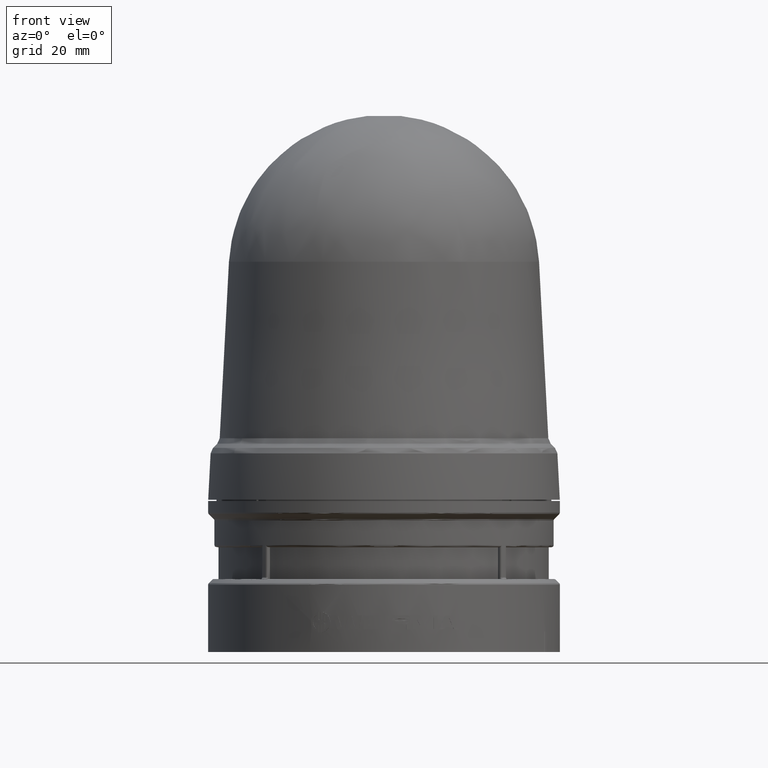
[diagram: clean part render]
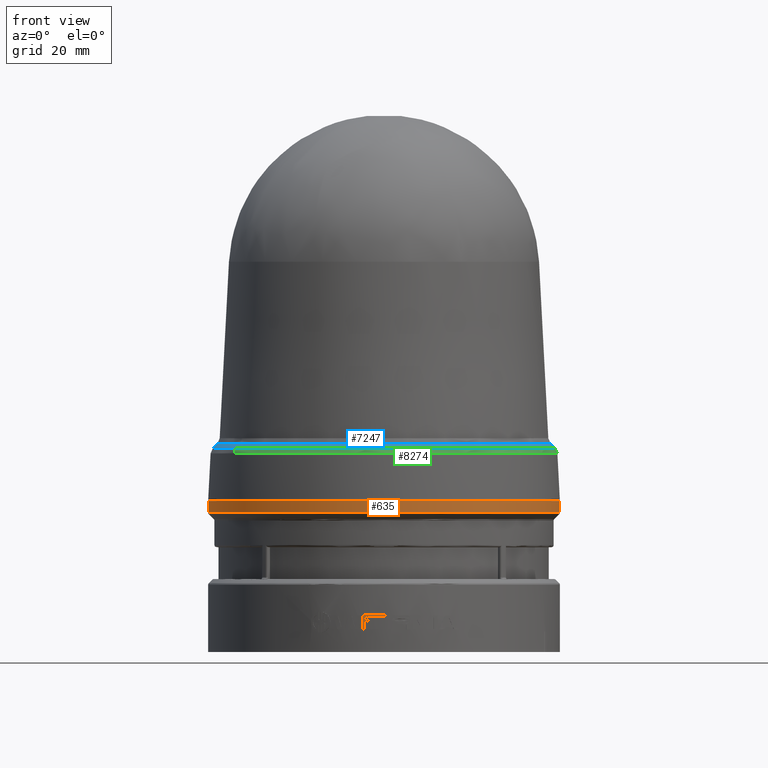
[diagram: same view with three faces highlighted in distinct colors, each labeled with its STEP entity id]
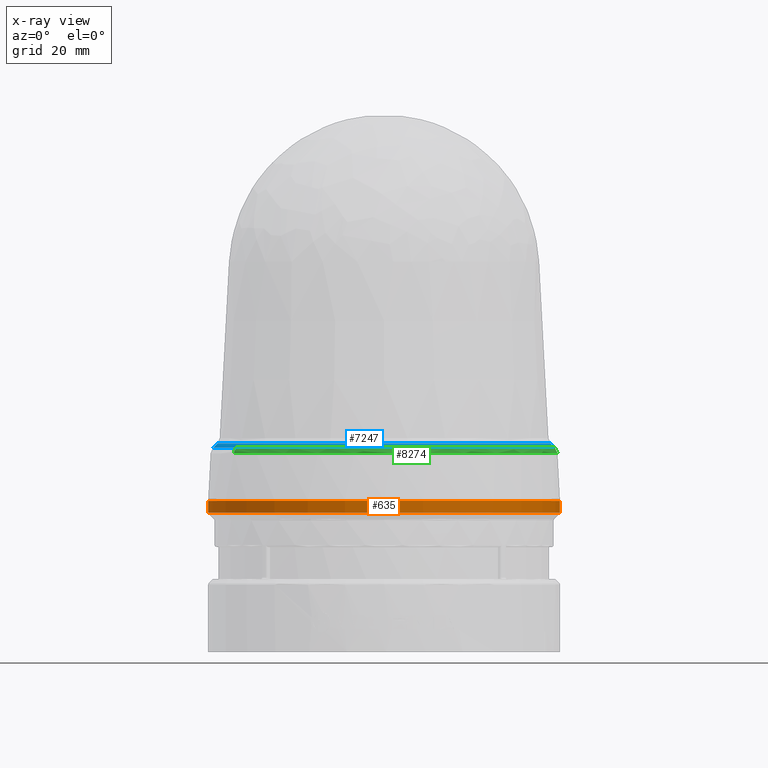
[diagram: x-ray of the same camera — body ghosted, the three highlighted faces saturated]
A machine part, front view with three faces highlighted in distinct colors.
The next image is the same camera in x-ray (body ghosted, the three faces saturated) — at least one of them is partly hidden behind the body in this view.
Their STEP definitions:

[orange] entity #635 — the highlighted cylindrical surface (partial cylindrical patch) has radius 42.5 mm, axis along (0, 0, -1).
#425 = CARTESIAN_POINT ( 'NONE',  ( 1.673228346456693050, 2.049113738730807505E-16, 0.8562992125984253411 ) ) ;
#466 = AXIS2_PLACEMENT_3D ( 'NONE', #2549, #5138, #9915 ) ;
#635 = ADVANCED_FACE ( 'NONE', ( #7728 ), #1624, .T. ) ;
#1624 = CYLINDRICAL_SURFACE ( 'NONE', #10052, 1.673228346456693050 ) ;
#1819 = ORIENTED_EDGE ( 'NONE', *, *, #2266, .F. ) ;
#2266 = EDGE_CURVE ( 'NONE', #8410, #3203, #14656, .T. ) ;
#2295 = VERTEX_POINT ( 'NONE', #7853 ) ;
#2549 = CARTESIAN_POINT ( 'NONE',  ( 0.0000000000000000000, 0.0000000000000000000, 1.327051448078212736 ) ) ;
#2793 = DIRECTION ( 'NONE',  ( 0.0000000000000000000, 0.0000000000000000000, -1.000000000000000000 ) ) ;
#3091 = DIRECTION ( 'NONE',  ( 0.0000000000000000000, 0.0000000000000000000, -1.000000000000000000 ) ) ;
#3203 = VERTEX_POINT ( 'NONE', #5157 ) ;
#3368 = ORIENTED_EDGE ( 'NONE', *, *, #14962, .F. ) ;
#3939 = DIRECTION ( 'NONE',  ( 0.0000000000000000000, 0.0000000000000000000, -1.000000000000000000 ) ) ;
#4013 = CARTESIAN_POINT ( 'NONE',  ( -1.673228346456693050, 0.0000000000000000000, 1.327051448078212736 ) ) ;
#4609 = VECTOR ( 'NONE', #3939, 39.37007874015748143 ) ;
#4967 = CIRCLE ( 'NONE', #466, 1.673228346456693050 ) ;
#5138 = DIRECTION ( 'NONE',  ( -0.0000000000000000000, -0.0000000000000000000, 1.000000000000000000 ) ) ;
#5157 = CARTESIAN_POINT ( 'NONE',  ( 1.673228346456693050, 2.049113738730807505E-16, 1.327051448078212736 ) ) ;
#5372 = CARTESIAN_POINT ( 'NONE',  ( 0.0000000000000000000, 0.0000000000000000000, 0.8562992125984253411 ) ) ;
#5984 = VECTOR ( 'NONE', #2793, 39.37007874015748143 ) ;
#6976 = AXIS2_PLACEMENT_3D ( 'NONE', #9584, #15435, #9510 ) ;
#7728 = FACE_OUTER_BOUND ( 'NONE', #11180, .T. ) ;
#7853 = CARTESIAN_POINT ( 'NONE',  ( -1.673228346456693050, 0.0000000000000000000, 1.437007874015747921 ) ) ;
#8275 = ORIENTED_EDGE ( 'NONE', *, *, #12646, .T. ) ;
#8410 = VERTEX_POINT ( 'NONE', #10618 ) ;
#9510 = DIRECTION ( 'NONE',  ( -1.000000000000000000, 0.0000000000000000000, 0.0000000000000000000 ) ) ;
#9584 = CARTESIAN_POINT ( 'NONE',  ( 0.0000000000000000000, 0.0000000000000000000, 1.437007874015747921 ) ) ;
#9601 = ORIENTED_EDGE ( 'NONE', *, *, #13807, .T. ) ;
#9915 = DIRECTION ( 'NONE',  ( -1.000000000000000000, 0.0000000000000000000, 0.0000000000000000000 ) ) ;
#10052 = AXIS2_PLACEMENT_3D ( 'NONE', #5372, #3091, #12343 ) ;
#10618 = CARTESIAN_POINT ( 'NONE',  ( 1.673228346456693050, 2.049113738730807505E-16, 1.437007874015747921 ) ) ;
#11180 = EDGE_LOOP ( 'NONE', ( #1819, #3368, #9601, #8275 ) ) ;
#11714 = CIRCLE ( 'NONE', #6976, 1.673228346456693050 ) ;
#12092 = VERTEX_POINT ( 'NONE', #4013 ) ;
#12282 = LINE ( 'NONE', #13672, #5984 ) ;
#12343 = DIRECTION ( 'NONE',  ( -1.000000000000000000, 0.0000000000000000000, 0.0000000000000000000 ) ) ;
#12646 = EDGE_CURVE ( 'NONE', #12092, #3203, #4967, .T. ) ;
#13672 = CARTESIAN_POINT ( 'NONE',  ( -1.673228346456693050, 0.0000000000000000000, 0.8562992125984253411 ) ) ;
#13807 = EDGE_CURVE ( 'NONE', #2295, #12092, #12282, .T. ) ;
#14656 = LINE ( 'NONE', #425, #4609 ) ;
#14962 = EDGE_CURVE ( 'NONE', #2295, #8410, #11714, .T. ) ;
#15435 = DIRECTION ( 'NONE',  ( -0.0000000000000000000, -0.0000000000000000000, 1.000000000000000000 ) ) ;

[blue] entity #7247 — the highlighted conical surface has half-angle 45 deg.
#40 = CARTESIAN_POINT ( 'NONE',  ( 0.0000000000000000000, 0.0000000000000000000, 1.942632508836785732 ) ) ;
#52 = VECTOR ( 'NONE', #7656, 39.37007874015748143 ) ;
#473 = VERTEX_POINT ( 'NONE', #12119 ) ;
#555 = CARTESIAN_POINT ( 'NONE',  ( -1.407777115246838129, -0.8158463767105484932, 1.942632508836785732 ) ) ;
#621 = EDGE_CURVE ( 'NONE', #4020, #473, #10229, .T. ) ;
#675 = CARTESIAN_POINT ( 'NONE',  ( -1.627096099375951122, 0.0000000000000000000, 1.942632508836785732 ) ) ;
#801 = CARTESIAN_POINT ( 'NONE',  ( 0.0000000000000000000, 0.0000000000000000000, 1.983102281106849718 ) ) ;
#825 = DIRECTION ( 'NONE',  ( 0.7071067811865499042, 8.659560562354962440E-17, -0.7071067811865451302 ) ) ;
#1376 = DIRECTION ( 'NONE',  ( -0.0000000000000000000, 0.0000000000000000000, -1.000000000000000000 ) ) ;
#1552 = EDGE_CURVE ( 'NONE', #12483, #9920, #4213, .T. ) ;
#1824 = DIRECTION ( 'NONE',  ( 0.0000000000000000000, 0.0000000000000000000, -1.000000000000000000 ) ) ;
#1860 = CIRCLE ( 'NONE', #4334, 1.586626327105886691 ) ;
#2862 = CONICAL_SURFACE ( 'NONE', #7598, 1.627096099375951122, 0.7853981633974517207 ) ;
#4020 = VERTEX_POINT ( 'NONE', #7145 ) ;
#4147 = ORIENTED_EDGE ( 'NONE', *, *, #8302, .F. ) ;
#4213 = CIRCLE ( 'NONE', #14716, 1.627096099375950899 ) ;
#4334 = AXIS2_PLACEMENT_3D ( 'NONE', #14890, #1824, #13880 ) ;
#4557 = VERTEX_POINT ( 'NONE', #10159 ) ;
#5480 = CARTESIAN_POINT ( 'NONE',  ( 0.0000000000000000000, 0.0000000000000000000, 1.942632508836785732 ) ) ;
#6948 = LINE ( 'NONE', #11710, #8369 ) ;
#7145 = CARTESIAN_POINT ( 'NONE',  ( -1.586626327105886913, 0.0000000000000000000, 1.983102281106849718 ) ) ;
#7225 = AXIS2_PLACEMENT_3D ( 'NONE', #5480, #8071, #15174 ) ;
#7247 = ADVANCED_FACE ( 'NONE', ( #10776 ), #2862, .T. ) ;
#7291 = DIRECTION ( 'NONE',  ( -0.0000000000000000000, -0.0000000000000000000, 1.000000000000000000 ) ) ;
#7559 = EDGE_CURVE ( 'NONE', #13588, #4557, #1860, .T. ) ;
#7598 = AXIS2_PLACEMENT_3D ( 'NONE', #40, #1376, #14431 ) ;
#7656 = DIRECTION ( 'NONE',  ( -0.7071067811865499042, 0.0000000000000000000, -0.7071067811865451302 ) ) ;
#7693 = ORIENTED_EDGE ( 'NONE', *, *, #12191, .T. ) ;
#7995 = CARTESIAN_POINT ( 'NONE',  ( 1.586626327105886913, 1.967837441469523977E-16, 1.983102281106849718 ) ) ;
#8071 = DIRECTION ( 'NONE',  ( -0.0000000000000000000, -0.0000000000000000000, 1.000000000000000000 ) ) ;
#8107 = CARTESIAN_POINT ( 'NONE',  ( 1.627096099375951122, 1.992618030005902044E-16, 1.942632508836785732 ) ) ;
#8242 = DIRECTION ( 'NONE',  ( 0.5014125330541039371, -0.8652083400524217538, 0.0000000000000000000 ) ) ;
#8302 = EDGE_CURVE ( 'NONE', #13588, #9920, #6948, .T. ) ;
#8369 = VECTOR ( 'NONE', #825, 39.37007874015748143 ) ;
#8540 = CARTESIAN_POINT ( 'NONE',  ( 0.0000000000000000000, 0.0000000000000000000, 1.942632508836785732 ) ) ;
#9920 = VERTEX_POINT ( 'NONE', #8107 ) ;
#10159 = CARTESIAN_POINT ( 'NONE',  ( -1.372762330758755311, -0.7955543256844920252, 1.983102281106849718 ) ) ;
#10201 = CIRCLE ( 'NONE', #12960, 1.586626327105886691 ) ;
#10229 = LINE ( 'NONE', #675, #52 ) ;
#10592 = ORIENTED_EDGE ( 'NONE', *, *, #7559, .T. ) ;
#10776 = FACE_OUTER_BOUND ( 'NONE', #12867, .T. ) ;
#11610 = DIRECTION ( 'NONE',  ( -0.8652083400524216428, -0.5014125330541040482, 0.0000000000000000000 ) ) ;
#11710 = CARTESIAN_POINT ( 'NONE',  ( 1.627096099375951122, 1.992618030005902044E-16, 1.942632508836785732 ) ) ;
#11900 = ORIENTED_EDGE ( 'NONE', *, *, #621, .T. ) ;
#11963 = CIRCLE ( 'NONE', #7225, 1.627096099375950899 ) ;
#12119 = CARTESIAN_POINT ( 'NONE',  ( -1.627096099375951122, 0.0000000000000000000, 1.942632508836785732 ) ) ;
#12191 = EDGE_CURVE ( 'NONE', #4557, #4020, #10201, .T. ) ;
#12483 = VERTEX_POINT ( 'NONE', #555 ) ;
#12563 = EDGE_CURVE ( 'NONE', #473, #12483, #11963, .T. ) ;
#12867 = EDGE_LOOP ( 'NONE', ( #4147, #10592, #7693, #11900, #15399, #14593 ) ) ;
#12960 = AXIS2_PLACEMENT_3D ( 'NONE', #801, #15346, #11610 ) ;
#13588 = VERTEX_POINT ( 'NONE', #7995 ) ;
#13880 = DIRECTION ( 'NONE',  ( -0.8652083400524216428, -0.5014125330541040482, 0.0000000000000000000 ) ) ;
#14431 = DIRECTION ( 'NONE',  ( -1.000000000000000000, 0.0000000000000000000, 0.0000000000000000000 ) ) ;
#14593 = ORIENTED_EDGE ( 'NONE', *, *, #1552, .T. ) ;
#14716 = AXIS2_PLACEMENT_3D ( 'NONE', #8540, #7291, #8242 ) ;
#14890 = CARTESIAN_POINT ( 'NONE',  ( 0.0000000000000000000, 0.0000000000000000000, 1.983102281106849718 ) ) ;
#15174 = DIRECTION ( 'NONE',  ( 0.5014125330541008285, -0.8652083400524235302, 0.0000000000000000000 ) ) ;
#15346 = DIRECTION ( 'NONE',  ( 0.0000000000000000000, 0.0000000000000000000, -1.000000000000000000 ) ) ;
#15399 = ORIENTED_EDGE ( 'NONE', *, *, #12563, .T. ) ;

[green] entity #8274 — the highlighted face is a freeform B-spline surface patch.
#268 = DIRECTION ( 'NONE',  ( -0.8652083400524217538, -0.5014125330541039371, 0.0000000000000000000 ) ) ;
#555 = CARTESIAN_POINT ( 'NONE',  ( -1.407777115246838129, -0.8158463767105484932, 1.942632508836785732 ) ) ;
#836 = CIRCLE ( 'NONE', #10590, 1.627096099375950899 ) ;
#908 = CARTESIAN_POINT ( 'NONE',  ( 3.065469848963093824, -2.016813588349010811, 1.928714138742648077 ) ) ;
#1552 = EDGE_CURVE ( 'NONE', #12483, #9920, #4213, .T. ) ;
#1697 = CARTESIAN_POINT ( 'NONE',  ( -1.427637581207633843, -0.8273560745301903330, 1.891075750967208702 ) ) ;
#1829 = CARTESIAN_POINT ( 'NONE',  ( 0.2258310386986474017, -3.662464032179881812, 1.928714138742648077 ) ) ;
#2201 = CIRCLE ( 'NONE', #6208, 1.650050646900994122 ) ;
#2365 = ORIENTED_EDGE ( 'NONE', *, *, #4367, .F. ) ;
#2529 = DIRECTION ( 'NONE',  ( -0.0000000000000000000, -0.0000000000000000000, 1.000000000000000000 ) ) ;
#2832 = CIRCLE ( 'NONE', #13127, 1.650050646900994122 ) ;
#3104 = CARTESIAN_POINT ( 'NONE',  ( 1.407777115246837907, 0.8158463767105484932, 1.942632508836785732 ) ) ;
#3162 = CARTESIAN_POINT ( 'NONE',  ( 3.039469868667934893, -1.999707853783127209, 1.942632508836787286 ) ) ;
#3326 = FACE_OUTER_BOUND ( 'NONE', #4446, .T. ) ;
#3519 = CIRCLE ( 'NONE', #7775, 0.07874015748031504280 ) ;
#3758 = AXIS2_PLACEMENT_3D ( 'NONE', #8530, #6181, #3824 ) ;
#3824 = DIRECTION ( 'NONE',  ( -0.8652083400524219758, -0.5014125330541034931, 0.0000000000000000000 ) ) ;
#4213 = CIRCLE ( 'NONE', #14716, 1.627096099375950899 ) ;
#4367 = EDGE_CURVE ( 'NONE', #9920, #13962, #836, .T. ) ;
#4446 = EDGE_LOOP ( 'NONE', ( #13927, #5036, #2365, #8089, #5852, #15034 ) ) ;
#4583 = CARTESIAN_POINT ( 'NONE',  ( -1.419819405132223489, -0.8228252219154356117, 1.928714138742647854 ) ) ;
#4645 = VERTEX_POINT ( 'NONE', #1697 ) ;
#5036 = ORIENTED_EDGE ( 'NONE', *, *, #9605, .T. ) ;
#5085 = DIRECTION ( 'NONE',  ( 0.5014125330541041592, -0.8652083400524218648, 0.0000000000000000000 ) ) ;
#5118 = CARTESIAN_POINT ( 'NONE',  ( 0.0000000000000000000, 0.0000000000000000000, 1.891075750967208702 ) ) ;
#5503 = CIRCLE ( 'NONE', #3758, 0.07874015748031504280 ) ;
#5520 = CARTESIAN_POINT ( 'NONE',  ( -1.427637581207633843, -0.8273560745301905550, 1.891075750967208702 ) ) ;
#5684 = CARTESIAN_POINT ( 'NONE',  ( -1.407777115246838129, -0.8158463767105487152, 1.942632508836787064 ) ) ;
#5852 = ORIENTED_EDGE ( 'NONE', *, *, #11514, .F. ) ;
#5970 = CARTESIAN_POINT ( 'NONE',  ( 1.650050646900993900, 2.034921490944564712E-16, 1.891075750967208702 ) ) ;
#6181 = DIRECTION ( 'NONE',  ( -0.5014125330541039371, 0.8652083400524217538, 0.0000000000000000000 ) ) ;
#6208 = AXIS2_PLACEMENT_3D ( 'NONE', #5118, #2529, #268 ) ;
#6783 = CARTESIAN_POINT ( 'NONE',  ( -1.426746280525369004, -0.8268395407520020557, 1.910732323102366070 ) ) ;
#7141 = CARTESIAN_POINT ( 'NONE',  ( 1.427637581207633843, 0.8273560745301905550, 1.891075750967208702 ) ) ;
#7291 = DIRECTION ( 'NONE',  ( -0.0000000000000000000, -0.0000000000000000000, 1.000000000000000000 ) ) ;
#7599 = EDGE_CURVE ( 'NONE', #4645, #13338, #2832, .T. ) ;
#7775 = AXIS2_PLACEMENT_3D ( 'NONE', #12286, #5085, #11189 ) ;
#7870 = CARTESIAN_POINT ( 'NONE',  ( 1.427637581207633843, 0.8273560745301904440, 1.891075750967208702 ) ) ;
#8089 = ORIENTED_EDGE ( 'NONE', *, *, #1552, .F. ) ;
#8107 = CARTESIAN_POINT ( 'NONE',  ( 1.627096099375951122, 1.992618030005902044E-16, 1.942632508836785732 ) ) ;
#8117 = CARTESIAN_POINT ( 'NONE',  ( 0.2239156381742589685, -3.631400607204224418, 1.942632508836787286 ) ) ;
#8242 = DIRECTION ( 'NONE',  ( 0.5014125330541039371, -0.8652083400524217538, 0.0000000000000000000 ) ) ;
#8274 = ADVANCED_FACE ( 'NONE', ( #3326 ), #14841, .T. ) ;
#8378 = CARTESIAN_POINT ( 'NONE',  ( 0.0000000000000000000, 0.0000000000000000000, 1.942632508836785732 ) ) ;
#8530 = CARTESIAN_POINT ( 'NONE',  ( -1.359604305452332351, -0.7879288804668884705, 1.886954809530760002 ) ) ;
#8540 = CARTESIAN_POINT ( 'NONE',  ( 0.0000000000000000000, 0.0000000000000000000, 1.942632508836785732 ) ) ;
#9000 = DIRECTION ( 'NONE',  ( -0.8652083400524217538, -0.5014125330541039371, 0.0000000000000000000 ) ) ;
#9123 = CARTESIAN_POINT ( 'NONE',  ( 1.426746280525369004, 0.8268395407520019447, 1.910732323102366070 ) ) ;
#9200 = CARTESIAN_POINT ( 'NONE',  ( 3.080425362029372227, -2.026653020298735175, 1.910732323102366070 ) ) ;
#9285 = CARTESIAN_POINT ( 'NONE',  ( 0.2269328009786351352, -3.680332101802739064, 1.910732323102366070 ) ) ;
#9364 = CARTESIAN_POINT ( 'NONE',  ( 1.407777115246838129, 0.8158463767105484932, 1.942632508836787064 ) ) ;
#9493 = VERTEX_POINT ( 'NONE', #7141 ) ;
#9605 = EDGE_CURVE ( 'NONE', #9493, #13962, #3519, .T. ) ;
#9920 = VERTEX_POINT ( 'NONE', #8107 ) ;
#9943 = CARTESIAN_POINT ( 'NONE',  ( 0.0000000000000000000, 0.0000000000000000000, 1.891075750967208702 ) ) ;
#10590 = AXIS2_PLACEMENT_3D ( 'NONE', #8378, #13144, #14308 ) ;
#11189 = DIRECTION ( 'NONE',  ( 0.8652083400524219758, 0.5014125330541034931, 0.0000000000000000000 ) ) ;
#11514 = EDGE_CURVE ( 'NONE', #4645, #12483, #5503, .T. ) ;
#11633 = CARTESIAN_POINT ( 'NONE',  ( 1.419819405132223489, 0.8228252219154353897, 1.928714138742647854 ) ) ;
#11922 = EDGE_CURVE ( 'NONE', #13338, #9493, #2201, .T. ) ;
#12286 = CARTESIAN_POINT ( 'NONE',  ( 1.359604305452332351, 0.7879288804668885815, 1.886954809530760002 ) ) ;
#12365 = DIRECTION ( 'NONE',  ( -0.0000000000000000000, -0.0000000000000000000, 1.000000000000000000 ) ) ;
#12483 = VERTEX_POINT ( 'NONE', #555 ) ;
#13127 = AXIS2_PLACEMENT_3D ( 'NONE', #9943, #12365, #9000 ) ;
#13144 = DIRECTION ( 'NONE',  ( -0.0000000000000000000, -0.0000000000000000000, 1.000000000000000000 ) ) ;
#13338 = VERTEX_POINT ( 'NONE', #5970 ) ;
#13927 = ORIENTED_EDGE ( 'NONE', *, *, #11922, .T. ) ;
#13962 = VERTEX_POINT ( 'NONE', #3104 ) ;
#14129 = CARTESIAN_POINT ( 'NONE',  ( 0.2270745678527469613, -3.682631236945457243, 1.891075750967208702 ) ) ;
#14308 = DIRECTION ( 'NONE',  ( 0.5014125330541039371, -0.8652083400524217538, 0.0000000000000000000 ) ) ;
#14716 = AXIS2_PLACEMENT_3D ( 'NONE', #8540, #7291, #8242 ) ;
#14841 =( BOUNDED_SURFACE ( )  B_SPLINE_SURFACE ( 3, 3, ( 
 ( #7870, #15292, #14129, #5520 ),
 ( #9123, #9200, #9285, #6783 ),
 ( #11633, #908, #1829, #4583 ),
 ( #9364, #3162, #8117, #5684 ) ),
 .UNSPECIFIED., .F., .F., .T. ) 
 B_SPLINE_SURFACE_WITH_KNOTS ( ( 4, 4 ),
 ( 4, 4 ),
 ( 0.0000000000000000000, 1.000000000000000000 ),
 ( 0.0000000000000000000, 1.000000000000000000 ),
 .UNSPECIFIED. ) 
 GEOMETRIC_REPRESENTATION_ITEM ( )  RATIONAL_B_SPLINE_SURFACE ( (
 ( 1.000000000000000000, 0.3333333333333334259, 0.3333333333333334259, 1.000000000000000000),
 ( 0.9557202843314624996, 0.3185734281104876109, 0.3185734281104876109, 0.9557202843314624996),
 ( 0.9557202843314624996, 0.3185734281104876109, 0.3185734281104876109, 0.9557202843314624996),
 ( 1.000000000000000000, 0.3333333333333334259, 0.3333333333333334259, 1.000000000000000000) ) ) 
 REPRESENTATION_ITEM ( '' )  SURFACE ( )  );
#15034 = ORIENTED_EDGE ( 'NONE', *, *, #7599, .T. ) ;
#15292 = CARTESIAN_POINT ( 'NONE',  ( 3.082349730268014287, -2.027919087885076799, 1.891075750967208702 ) ) ;